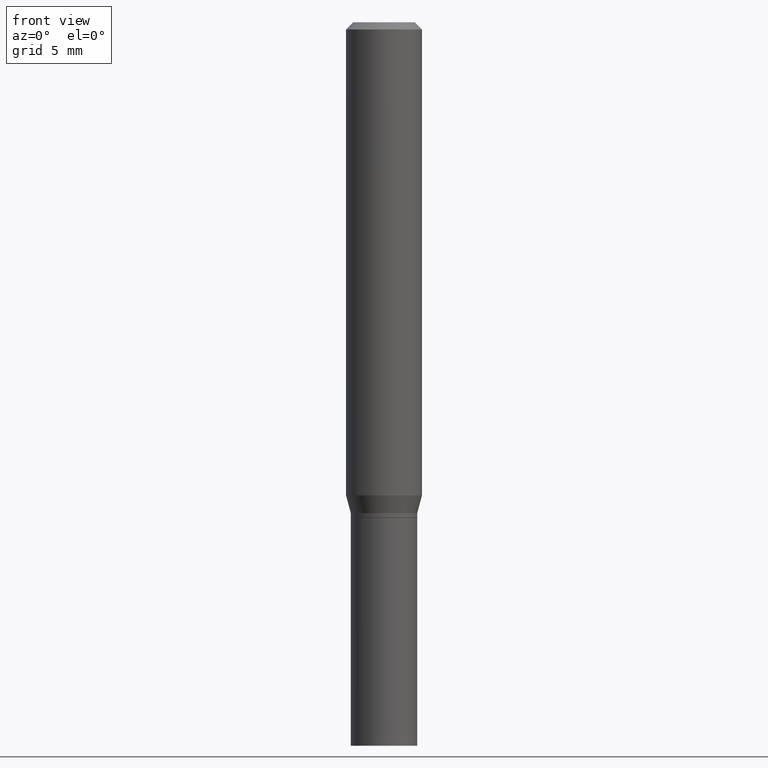
[diagram: clean part render]
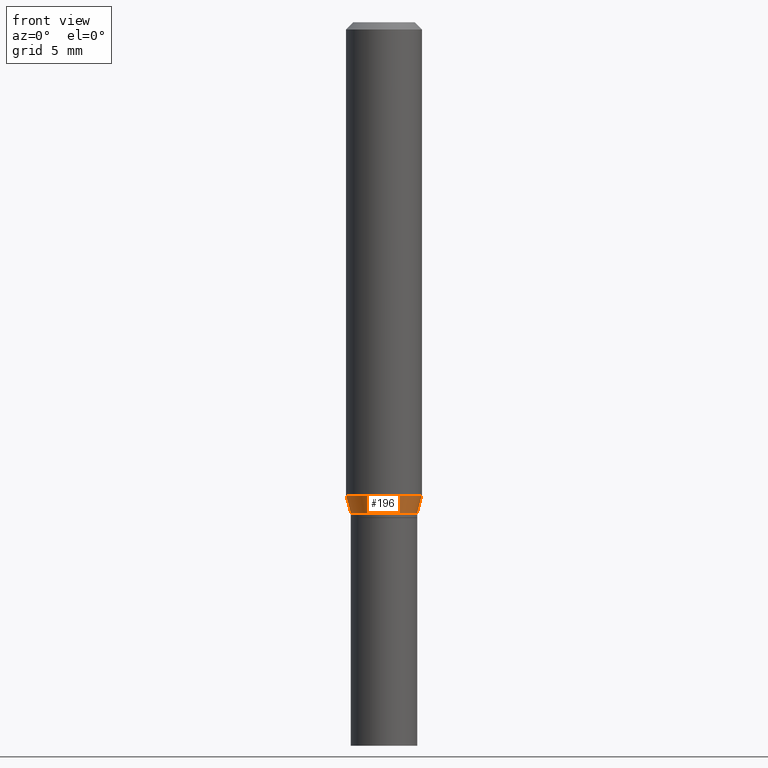
[diagram: same view with one face highlighted and labeled with its STEP entity id]
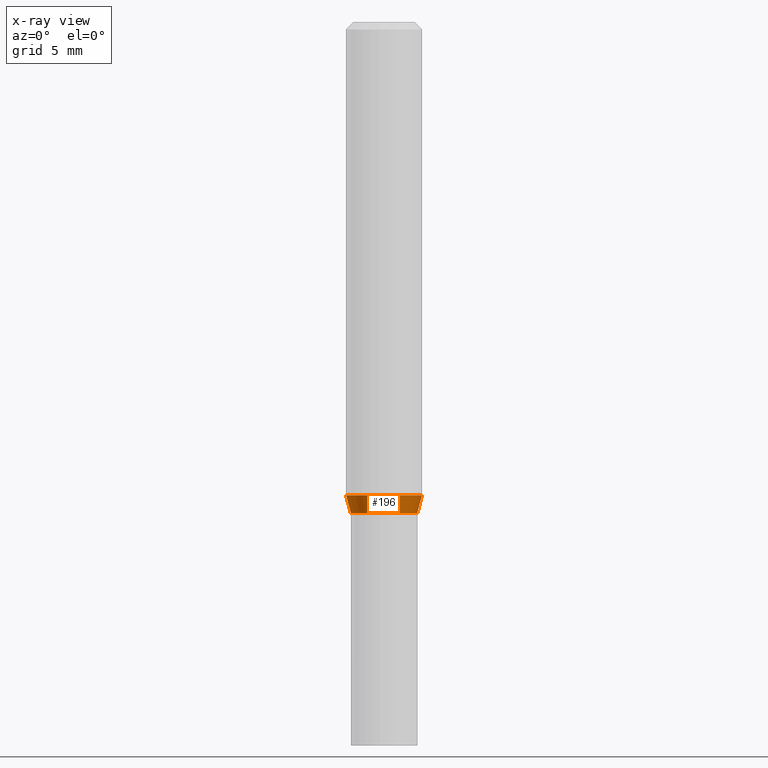
[diagram: x-ray of the same camera — body ghosted, the highlighted face saturated]
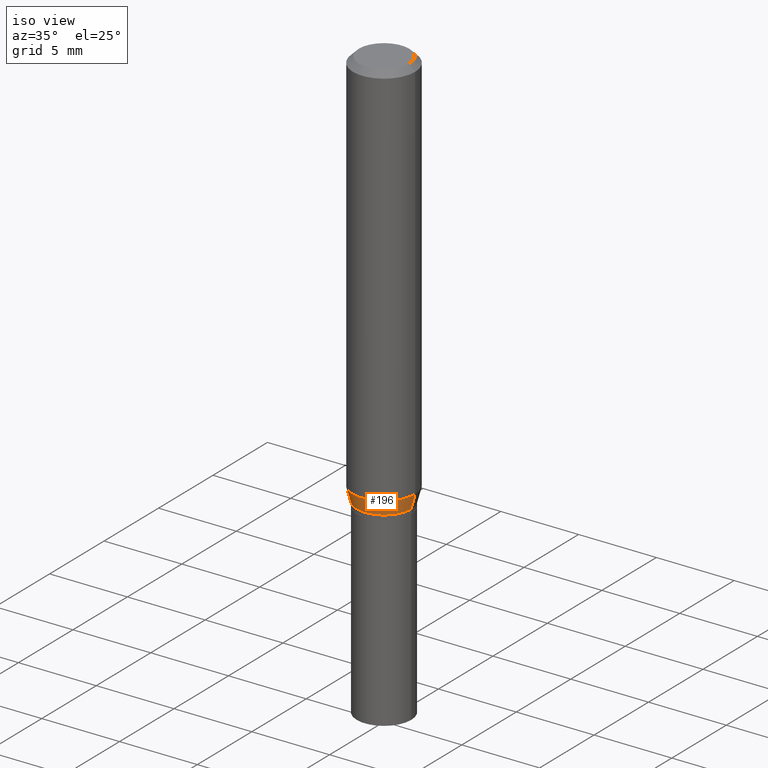
[diagram: same view with one face highlighted and labeled with its STEP entity id]
A machine part, front view. The second image highlights one B-rep face of the part: STEP entity #196.
The next image is the same camera in x-ray: the body ghosted, the highlighted face saturated — about 0% of this face is hidden behind the body in this view.
A second angle (iso view) of the same face is appended — the face is thin or edge-on in the first view.
In plain terms, the highlighted conical surface has half-angle 15 deg.
Its self-contained STEP definition (entity closure, byte-faithful):
#26 = ORIENTED_EDGE ( 'NONE', *, *, #223, .F. ) ;
#34 = VECTOR ( 'NONE', #263, 39.37007874015748143 ) ;
#43 = CONICAL_SURFACE ( 'NONE', #386, 0.06890000000000007230, 0.2617993877991506846 ) ;
#44 = AXIS2_PLACEMENT_3D ( 'NONE', #277, #204, #288 ) ;
#49 = LINE ( 'NONE', #372, #34 ) ;
#65 = VERTEX_POINT ( 'NONE', #123 ) ;
#80 = ORIENTED_EDGE ( 'NONE', *, *, #118, .T. ) ;
#85 = CARTESIAN_POINT ( 'NONE',  ( 2.488509057173995025E-29, -3.552931410406785269E-15, -1.017600000000000060 ) ) ;
#101 = EDGE_LOOP ( 'NONE', ( #26, #276, #80, #400 ) ) ;
#118 = EDGE_CURVE ( 'NONE', #247, #436, #164, .T. ) ;
#119 = CARTESIAN_POINT ( 'NONE',  ( 0.07875000000000001443, -3.974490421634703940E-15, -0.9808392995454470187 ) ) ;
#122 = CARTESIAN_POINT ( 'NONE',  ( 0.06890000000000007230, -4.034057538899369797E-15, -1.017600000000000060 ) ) ;
#123 = CARTESIAN_POINT ( 'NONE',  ( -0.06890000000000007230, -2.964198585911954154E-15, -1.017600000000000060 ) ) ;
#130 = CARTESIAN_POINT ( 'NONE',  ( 2.488509057173995025E-29, -3.552931410406785269E-15, -1.017600000000000060 ) ) ;
#132 = EDGE_CURVE ( 'NONE', #65, #247, #219, .T. ) ;
#160 = DIRECTION ( 'NONE',  ( -2.445468806185136597E-29, 3.491481338843145583E-15, 1.000000000000000000 ) ) ;
#164 = LINE ( 'NONE', #122, #186 ) ;
#186 = VECTOR ( 'NONE', #415, 39.37007874015748143 ) ;
#191 = CARTESIAN_POINT ( 'NONE',  ( 0.06890000000000007230, -4.034057538899369797E-15, -1.017600000000000060 ) ) ;
#196 = ADVANCED_FACE ( 'NONE', ( #315 ), #43, .T. ) ;
#204 = DIRECTION ( 'NONE',  ( -2.445468806185136597E-29, 3.491481338843145583E-15, 1.000000000000000000 ) ) ;
#206 = EDGE_CURVE ( 'NONE', #284, #436, #378, .T. ) ;
#219 = CIRCLE ( 'NONE', #316, 0.06890000000000007230 ) ;
#223 = EDGE_CURVE ( 'NONE', #65, #284, #49, .T. ) ;
#247 = VERTEX_POINT ( 'NONE', #191 ) ;
#263 = DIRECTION ( 'NONE',  ( -0.2588190451025219607, 5.211531920934553408E-15, 0.9659258262890679791 ) ) ;
#276 = ORIENTED_EDGE ( 'NONE', *, *, #132, .T. ) ;
#277 = CARTESIAN_POINT ( 'NONE',  ( 2.398611910918870150E-29, -3.424582110766910594E-15, -0.9808392995454470187 ) ) ;
#284 = VERTEX_POINT ( 'NONE', #374 ) ;
#288 = DIRECTION ( 'NONE',  ( 1.000000000000000000, -6.982962677686267499E-15, 0.000000000000000000 ) ) ;
#306 = DIRECTION ( 'NONE',  ( -2.445468806185136597E-29, 3.491481338843145583E-15, 1.000000000000000000 ) ) ;
#315 = FACE_OUTER_BOUND ( 'NONE', #101, .T. ) ;
#316 = AXIS2_PLACEMENT_3D ( 'NONE', #85, #306, #457 ) ;
#372 = CARTESIAN_POINT ( 'NONE',  ( -0.06890000000000007230, -3.063367465468076122E-15, -1.017600000000000060 ) ) ;
#374 = CARTESIAN_POINT ( 'NONE',  ( -0.07875000000000001443, -2.865029706355831792E-15, -0.9808392995454470187 ) ) ;
#378 = CIRCLE ( 'NONE', #44, 0.07875000000000001443 ) ;
#386 = AXIS2_PLACEMENT_3D ( 'NONE', #130, #160, #417 ) ;
#400 = ORIENTED_EDGE ( 'NONE', *, *, #206, .F. ) ;
#415 = DIRECTION ( 'NONE',  ( 0.2588190451025219607, 1.565188264969617432E-15, 0.9659258262890679791 ) ) ;
#417 = DIRECTION ( 'NONE',  ( 1.000000000000000000, -6.982962677686265922E-15, 0.000000000000000000 ) ) ;
#436 = VERTEX_POINT ( 'NONE', #119 ) ;
#457 = DIRECTION ( 'NONE',  ( 1.000000000000000000, -6.982962677686265922E-15, 0.000000000000000000 ) ) ;